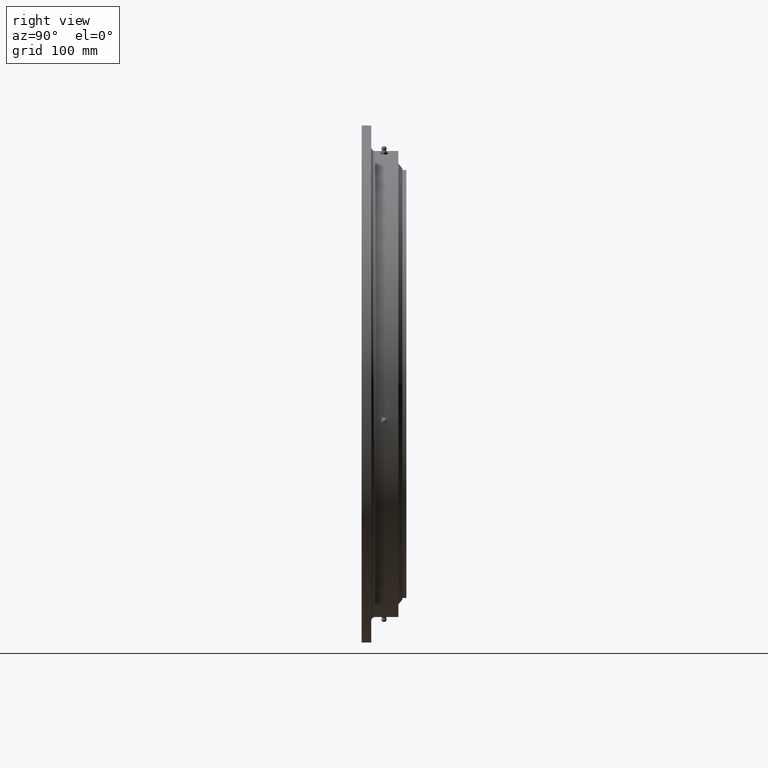
[diagram: clean part render]
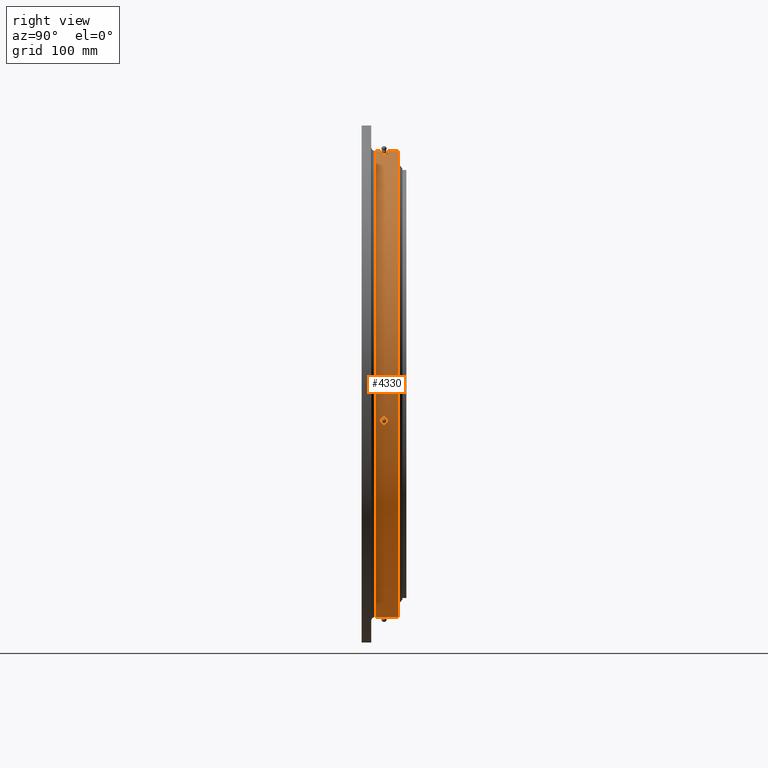
[diagram: same view with one face highlighted and labeled with its STEP entity id]
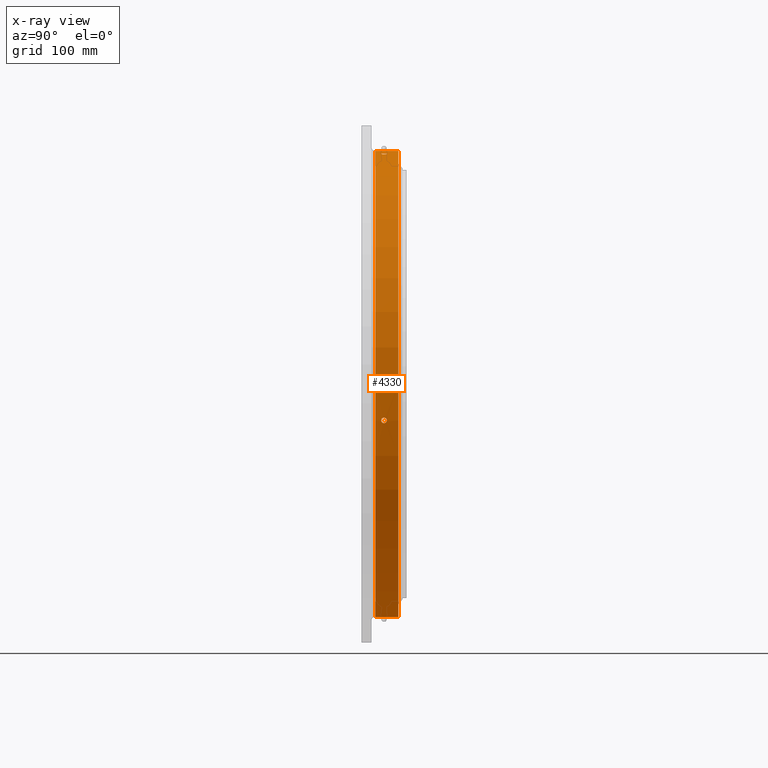
[diagram: x-ray of the same camera — body ghosted, the highlighted face saturated]
A machine part, right view. The second image highlights one B-rep face of the part: STEP entity #4330.
The next image is the same camera in x-ray: the body ghosted, the highlighted face saturated — about 0% of this face is hidden behind the body in this view.
In plain terms, the highlighted cylindrical surface (partial cylindrical patch) has radius 292 mm, axis along (-0, 1, -0).
Its self-contained STEP definition (entity closure, byte-faithful):
#81 = CARTESIAN_POINT ( 'NONE',  ( 0.0000000000000000000, -11.00000000000004100, 292.0000000000000600 ) ) ;
#155 = CARTESIAN_POINT ( 'NONE',  ( 47.20889630285432000, 3.146594439009602800, 288.1585764264917200 ) ) ;
#185 = CARTESIAN_POINT ( 'NONE',  ( 287.9145844954449000, 1.757442893269221700, -48.67451482056718200 ) ) ;
#216 = CARTESIAN_POINT ( 'NONE',  ( 42.32910779389688100, 0.9064384252070941700, 288.9156427654972400 ) ) ;
#371 = CARTESIAN_POINT ( 'NONE',  ( 287.8555204499065200, -0.9060113532386968600, -49.02245733847024000 ) ) ;
#377 = CARTESIAN_POINT ( 'NONE',  ( 49.02245733846921600, -0.9060113532386986400, 287.8555204499067500 ) ) ;
#385 = CARTESIAN_POINT ( 'NONE',  ( 288.8647623424703300, 1.751993078519696900, -42.67511524179590100 ) ) ;
#452 = CARTESIAN_POINT ( 'NONE',  ( 288.8058973910238500, -2.312149980111091200, -43.07180441916415200 ) ) ;
#529 = CARTESIAN_POINT ( 'NONE',  ( 288.1585764264917200, 3.146594439009601900, -47.20889630285533700 ) ) ;
#642 = CARTESIAN_POINT ( 'NONE',  ( 42.67750499806174200, -1.755855468495625800, 288.8644087329223600 ) ) ;
#698 = CARTESIAN_POINT ( 'NONE',  ( 288.1259771539941400, 3.039193912445266900, -47.40735643327344900 ) ) ;
#720 = LINE ( 'NONE', #4418, #6774 ) ;
#725 = AXIS2_PLACEMENT_3D ( 'NONE', #9353, #8044, #5722 ) ;
#747 = CARTESIAN_POINT ( 'NONE',  ( 288.8803841167072600, -1.551321302229553600, -42.56913659480046900 ) ) ;
#796 = CARTESIAN_POINT ( 'NONE',  ( 288.3332941684955700, -3.477719641629781800, -46.12984407576900000 ) ) ;
#826 = EDGE_LOOP ( 'NONE', ( #9773, #6828, #6948, #4240 ) ) ;
#875 = CARTESIAN_POINT ( 'NONE',  ( 42.92835065063567200, 2.135342081986753500, 288.8272374525790300 ) ) ;
#927 = CARTESIAN_POINT ( 'NONE',  ( 46.57094826509877100, 3.389071834379513400, 288.2623748934139500 ) ) ;
#951 = CARTESIAN_POINT ( 'NONE',  ( 287.9809381417305200, -2.313875641280007200, -48.28048622506153000 ) ) ;
#1016 = CARTESIAN_POINT ( 'NONE',  ( 42.92826606166235600, -2.134966986178043100, 288.8272494734863500 ) ) ;
#1055 = CARTESIAN_POINT ( 'NONE',  ( 288.9317975595369600, 4.460888646687803700E-009, -42.21867310817260900 ) ) ;
#1107 = CARTESIAN_POINT ( 'NONE',  ( 288.5798078251224900, 3.320200754326101000, -44.56163466459040000 ) ) ;
#1255 = CARTESIAN_POINT ( 'NONE',  ( 287.8405776340303000, -0.4586454577529530100, -49.11011957118917300 ) ) ;
#1384 = EDGE_CURVE ( 'NONE', #1803, #5769, #7996, .T. ) ;
#1529 = EDGE_CURVE ( 'NONE', #3399, #4341, #7927, .T. ) ;
#1558 = CARTESIAN_POINT ( 'NONE',  ( 287.8963376336964200, 1.553254704249977400, -48.78223473081985900 ) ) ;
#1587 = CARTESIAN_POINT ( 'NONE',  ( 42.21867310817159300, 4.460888646687803700E-009, 288.9317975595371300 ) ) ;
#1652 = CARTESIAN_POINT ( 'NONE',  ( 288.2269088295212800, 3.322147765666581000, -46.78989297759484600 ) ) ;
#1672 = CARTESIAN_POINT ( 'NONE',  ( 49.13249149233755000, 0.4624063129267878000, 287.8367563042555700 ) ) ;
#1699 = CARTESIAN_POINT ( 'NONE',  ( 45.90388083244634000, 3.500192912144351800, 288.3693585967969900 ) ) ;
#1754 = CARTESIAN_POINT ( 'NONE',  ( 288.1584883878371700, -3.146204069004259600, -47.20942625995739700 ) ) ;
#1755 = CARTESIAN_POINT ( 'NONE',  ( 48.42631280847368200, -2.133733730226406300, 287.9564348366741300 ) ) ;
#1803 = VERTEX_POINT ( 'NONE', #1055 ) ;
#1820 = CARTESIAN_POINT ( 'NONE',  ( 48.95610305292218100, -1.128304128777330300, 287.8668228431490100 ) ) ;
#1899 = CARTESIAN_POINT ( 'NONE',  ( 44.78200859129147200, -3.387953936008307700, 288.5457019048786800 ) ) ;
#1916 = CARTESIAN_POINT ( 'NONE',  ( 287.8367563042554600, -0.2312553657585158800, -49.13249149233858000 ) ) ;
#1987 = B_SPLINE_CURVE_WITH_KNOTS ( 'NONE', 3,
 ( #4311, #1916, #1255, #371, #8339, #2041, #9307, #2299, #951, #7990, #6668, #7420, #1754, #3342, #6563, #796, #5071, #3590, #5039, #8182, #2701, #2526, #8787, #5083, #2777, #452, #3531, #4282, #747, #3201, #5394, #2898, #4125, #8282 ),
 .UNSPECIFIED., .F., .F.,
 ( 4, 2, 2, 2, 2, 2, 2, 2, 2, 2, 2, 2, 2, 2, 2, 2, 4 ),
 ( 1.919444837870882000E-018, 0.0006839186438957310500, 0.001367837287791460200, 0.002051755931687188900, 0.002735674575582917300, 0.003419593219478645600, 0.004103511863374374400, 0.004787430507270102300, 0.005471349151165831100, 0.006155267795061559800, 0.006839186438957288600, 0.007523105082853018300, 0.008207023726748747000, 0.008890942370644475800, 0.009574861014540204600, 0.01025877965843593500, 0.01094269830233166200 ),
 .UNSPECIFIED. ) ;
#2025 = CARTESIAN_POINT ( 'NONE',  ( 47.41048720234763900, -3.037489477667033400, 288.1254627986847400 ) ) ;
#2041 = CARTESIAN_POINT ( 'NONE',  ( 287.8962326206456100, -1.552200086800851000, -48.78285521344943700 ) ) ;
#2299 = CARTESIAN_POINT ( 'NONE',  ( 287.9564348366739600, -2.133733730226409000, -48.42631280847468400 ) ) ;
#2366 = CARTESIAN_POINT ( 'NONE',  ( 3.575968653510272000E-014, 22.16364734299516900, -292.0000000000000600 ) ) ;
#2368 = CARTESIAN_POINT ( 'NONE',  ( 49.13249149233756400, 4.460889323045970300E-009, 287.8367563042555700 ) ) ;
#2423 = CARTESIAN_POINT ( 'NONE',  ( 48.78223473081882800, 1.553254704249979100, 287.8963376336964800 ) ) ;
#2458 = CARTESIAN_POINT ( 'NONE',  ( 45.22361897625437900, 3.477013091493038800, 288.4768176524664200 ) ) ;
#2526 = CARTESIAN_POINT ( 'NONE',  ( 288.6434479082269600, -3.146548344290857700, -44.14753531969959300 ) ) ;
#2617 = CARTESIAN_POINT ( 'NONE',  ( 42.24132389320103400, -0.4604158421186757600, 288.9284903857500200 ) ) ;
#2650 = CIRCLE ( 'NONE', #5917, 292.0000000000000600 ) ;
#2667 = CARTESIAN_POINT ( 'NONE',  ( 45.22556019124175500, -3.477323496806136800, 288.4765139255499100 ) ) ;
#2683 = CARTESIAN_POINT ( 'NONE',  ( 0.0000000000000000000, 17.99999999999999600, 292.0000000000000600 ) ) ;
#2701 = CARTESIAN_POINT ( 'NONE',  ( 288.5790741804376600, -3.321847795812679700, -44.56638688871843400 ) ) ;
#2706 = CARTESIAN_POINT ( 'NONE',  ( 288.4768176524662500, 3.477013091493037900, -45.22361897625538800 ) ) ;
#2714 = CARTESIAN_POINT ( 'NONE',  ( 288.9059004071688200, 1.127692049394917900, -42.39561659527777900 ) ) ;
#2737 = B_SPLINE_CURVE_WITH_KNOTS ( 'NONE', 3,
 ( #1587, #3164, #4770, #216, #8188, #8820, #8060, #875, #8412, #4303, #3411, #3987, #8486, #3221, #7741, #2458, #6992, #1699, #6233, #927, #5487, #155, #4721, #9226, #3949, #8452, #3198, #7705, #2423, #6960, #1672, #6196 ),
 .UNSPECIFIED., .F., .F.,
 ( 4, 2, 2, 2, 2, 2, 2, 2, 2, 2, 2, 2, 2, 2, 2, 4 ),
 ( 0.01094269830233166700, 0.01162646252176317000, 0.01231022674119467200, 0.01299399096062617300, 0.01367775518005767500, 0.01436151939948917600, 0.01504528361892067800, 0.01572904783835217900, 0.01641281205778367900, 0.01709657627721518000, 0.01778034049664668100, 0.01846410471607818100, 0.01914786893550968200, 0.01983163315494118600, 0.02051539737437268700, 0.02188292581323569900 ),
 .UNSPECIFIED. ) ;
#2777 = CARTESIAN_POINT ( 'NONE',  ( 288.7575076961283000, -2.638804554593000800, -43.39502797415573800 ) ) ;
#2820 = CARTESIAN_POINT ( 'NONE',  ( 48.78285521344842100, -1.552200086800851600, 287.8962326206456600 ) ) ;
#2878 = CARTESIAN_POINT ( 'NONE',  ( 45.90556347608059400, -3.499918853653414300, 288.3690887664408300 ) ) ;
#2898 = CARTESIAN_POINT ( 'NONE',  ( 288.9284903857499100, -0.4604158421186733100, -42.24132389320203600 ) ) ;
#2916 = EDGE_CURVE ( 'NONE', #4341, #3399, #2737, .T. ) ;
#3013 = CARTESIAN_POINT ( 'NONE',  ( 288.9317975595370700, 0.2283793447495573200, -42.21867310817260900 ) ) ;
#3025 = EDGE_CURVE ( 'NONE', #6337, #7615, #720, .T. ) ;
#3158 = CARTESIAN_POINT ( 'NONE',  ( 288.6440841308963700, 3.144457492696149300, -44.14337396032511400 ) ) ;
#3164 = CARTESIAN_POINT ( 'NONE',  ( 42.21867310817159300, 0.2283793447495557900, 288.9317975595371900 ) ) ;
#3198 = CARTESIAN_POINT ( 'NONE',  ( 48.42227673045984200, 2.139169787648932200, 287.9571139500480400 ) ) ;
#3201 = CARTESIAN_POINT ( 'NONE',  ( 288.9059465575870700, -1.127095867206578300, -42.39530353126158200 ) ) ;
#3221 = CARTESIAN_POINT ( 'NONE',  ( 44.56163466458937700, 3.320200754326097400, 288.5798078251226600 ) ) ;
#3323 = CIRCLE ( 'NONE', #5551, 292.0000000000000600 ) ;
#3342 = CARTESIAN_POINT ( 'NONE',  ( 288.2262906535071900, -3.320722075032903400, -46.79369331306973100 ) ) ;
#3381 = CARTESIAN_POINT ( 'NONE',  ( 288.7314169779352800, 2.782416065260173700, -43.56839531778133100 ) ) ;
#3399 = VERTEX_POINT ( 'NONE', #2368 ) ;
#3411 = CARTESIAN_POINT ( 'NONE',  ( 43.56839531778031500, 2.782416065260172800, 288.7314169779354500 ) ) ;
#3531 = CARTESIAN_POINT ( 'NONE',  ( 288.8272494734862300, -2.134966986178040000, -42.92826606166335800 ) ) ;
#3559 = FACE_OUTER_BOUND ( 'NONE', #826, .T. ) ;
#3571 = CARTESIAN_POINT ( 'NONE',  ( 49.11011957118815700, -0.4586454577529546800, 287.8405776340304100 ) ) ;
#3590 = CARTESIAN_POINT ( 'NONE',  ( 288.4405139680108600, -3.500080697633168600, -45.45461490227046400 ) ) ;
#3847 = CARTESIAN_POINT ( 'NONE',  ( 287.8367563042554000, 0.4624063129267875200, -49.13249149233854500 ) ) ;
#3949 = CARTESIAN_POINT ( 'NONE',  ( 47.96043214083786000, 2.638066420152105400, 288.0344130244017200 ) ) ;
#3987 = CARTESIAN_POINT ( 'NONE',  ( 43.94473188885889700, 3.036882258378010800, 288.6743784264012900 ) ) ;
#4007 = CARTESIAN_POINT ( 'NONE',  ( 49.13249149233755000, -0.2312553657585161300, 287.8367563042555200 ) ) ;
#4035 = CARTESIAN_POINT ( 'NONE',  ( 42.56913659479947400, -1.551321302229555800, 288.8803841167075500 ) ) ;
#4102 = CARTESIAN_POINT ( 'NONE',  ( 46.79369331306872900, -3.320722075032901600, 288.2262906535073100 ) ) ;
#4116 = CARTESIAN_POINT ( 'NONE',  ( 42.32984234703845800, -0.9088852506788056600, 288.9155351442937600 ) ) ;
#4125 = CARTESIAN_POINT ( 'NONE',  ( 288.9317975595370200, -0.2284309140710708000, -42.21867310817261700 ) ) ;
#4181 = CARTESIAN_POINT ( 'NONE',  ( 288.8805398184067600, 1.548906331347780400, -42.56807854245477100 ) ) ;
#4240 = ORIENTED_EDGE ( 'NONE', *, *, #3025, .F. ) ;
#4282 = CARTESIAN_POINT ( 'NONE',  ( 288.8644087329222400, -1.755855468495622000, -42.67750499806275100 ) ) ;
#4303 = CARTESIAN_POINT ( 'NONE',  ( 43.39054599747871100, 2.634578809146741000, 288.7581799932646000 ) ) ;
#4311 = CARTESIAN_POINT ( 'NONE',  ( 287.8367563042553500, 4.460888605588285200E-009, -49.13249149233856600 ) ) ;
#4330 = ADVANCED_FACE ( 'NONE', ( #5562, #9559, #3559 ), #5332, .T. ) ;
#4341 = VERTEX_POINT ( 'NONE', #6425 ) ;
#4418 = CARTESIAN_POINT ( 'NONE',  ( 0.0000000000000000000, 22.16364734299516900, 292.0000000000000600 ) ) ;
#4541 = CARTESIAN_POINT ( 'NONE',  ( 288.9317975595369600, 4.460888646687803700E-009, -42.21867310817260900 ) ) ;
#4721 = CARTESIAN_POINT ( 'NONE',  ( 47.40735643327242600, 3.039193912445266900, 288.1259771539942000 ) ) ;
#4770 = CARTESIAN_POINT ( 'NONE',  ( 42.24058070161000000, 0.4553544499836484900, 288.9285990400026100 ) ) ;
#4860 = DIRECTION ( 'NONE',  ( -0.0000000000000000000, 1.000000000000000000, 3.236020378625323200E-016 ) ) ;
#4994 = EDGE_CURVE ( 'NONE', #5769, #1803, #1987, .T. ) ;
#5016 = CARTESIAN_POINT ( 'NONE',  ( 44.56638688871741700, -3.321847795812681100, 288.5790741804378300 ) ) ;
#5039 = CARTESIAN_POINT ( 'NONE',  ( 288.4765139255498000, -3.477323496806136400, -45.22556019124277100 ) ) ;
#5040 = CARTESIAN_POINT ( 'NONE',  ( 0.0000000000000000000, -10.99999999999994700, 0.0000000000000000000 ) ) ;
#5071 = CARTESIAN_POINT ( 'NONE',  ( 288.3690887664407700, -3.499918853653413400, -45.90556347608161000 ) ) ;
#5083 = CARTESIAN_POINT ( 'NONE',  ( 288.7311972956701400, -2.783474925075506400, -43.56984828254447000 ) ) ;
#5088 = CARTESIAN_POINT ( 'NONE',  ( 44.14753531969859100, -3.146548344290859100, 288.6434479082271300 ) ) ;
#5113 = CARTESIAN_POINT ( 'NONE',  ( 288.0639914001445700, 2.785758414590748800, -47.78255972164796400 ) ) ;
#5137 = DIRECTION ( 'NONE',  ( -0.0000000000000000000, 1.000000000000000000, -0.0000000000000000000 ) ) ;
#5170 = DIRECTION ( 'NONE',  ( -0.0000000000000000000, 1.000000000000000000, -0.0000000000000000000 ) ) ;
#5220 = CARTESIAN_POINT ( 'NONE',  ( 42.39530353126056600, -1.127095867206581600, 288.9059465575872400 ) ) ;
#5249 = CARTESIAN_POINT ( 'NONE',  ( 46.57595763471503100, -3.387877048913864100, 288.2615673497254000 ) ) ;
#5257 = CARTESIAN_POINT ( 'NONE',  ( 288.3333637250733000, 3.477621221566339600, -46.12939805033536100 ) ) ;
#5332 = CYLINDRICAL_SURFACE ( 'NONE', #725, 292.0000000000000600 ) ;
#5394 = CARTESIAN_POINT ( 'NONE',  ( 288.9155351442936400, -0.9088852506788027700, -42.32984234703948800 ) ) ;
#5487 = CARTESIAN_POINT ( 'NONE',  ( 46.78989297759382300, 3.322147765666581900, 288.2269088295215100 ) ) ;
#5506 = CARTESIAN_POINT ( 'NONE',  ( 48.28048622506050700, -2.313875641280006300, 287.9809381417305200 ) ) ;
#5551 = AXIS2_PLACEMENT_3D ( 'NONE', #7616, #5137, #7124 ) ;
#5562 = FACE_BOUND ( 'NONE', #9744, .T. ) ;
#5722 = DIRECTION ( 'NONE',  ( 0.0000000000000000000, 0.0000000000000000000, 1.000000000000000000 ) ) ;
#5769 = VERTEX_POINT ( 'NONE', #8015 ) ;
#5818 = CARTESIAN_POINT ( 'NONE',  ( 288.8059206205894600, 2.311676006085805000, -43.07164043167701800 ) ) ;
#5841 = CARTESIAN_POINT ( 'NONE',  ( 3.575968653510272000E-014, -10.99999999999985400, -292.0000000000000600 ) ) ;
#5892 = VERTEX_POINT ( 'NONE', #5841 ) ;
#5917 = AXIS2_PLACEMENT_3D ( 'NONE', #5040, #4860, #9358 ) ;
#6012 = ORIENTED_EDGE ( 'NONE', *, *, #4994, .T. ) ;
#6032 = VERTEX_POINT ( 'NONE', #7514 ) ;
#6053 = CARTESIAN_POINT ( 'NONE',  ( 288.6743784264010600, 3.036882258378010000, -43.94473188885989900 ) ) ;
#6144 = CARTESIAN_POINT ( 'NONE',  ( 288.2623748934137200, 3.389071834379510800, -46.57094826509977300 ) ) ;
#6196 = CARTESIAN_POINT ( 'NONE',  ( 49.13249149233756400, 4.460889323045970300E-009, 287.8367563042555700 ) ) ;
#6233 = CARTESIAN_POINT ( 'NONE',  ( 46.12939805033434500, 3.477621221566340500, 288.3333637250734100 ) ) ;
#6283 = CARTESIAN_POINT ( 'NONE',  ( 48.67683199102301500, -1.753246945237971800, 287.9141923618729500 ) ) ;
#6337 = VERTEX_POINT ( 'NONE', #81 ) ;
#6395 = CARTESIAN_POINT ( 'NONE',  ( 46.12984407576799800, -3.477719641629781300, 288.3332941684959100 ) ) ;
#6424 = CARTESIAN_POINT ( 'NONE',  ( 43.56984828254345400, -2.783474925075509100, 288.7311972956702600 ) ) ;
#6425 = CARTESIAN_POINT ( 'NONE',  ( 42.21867310817159300, 4.460888646687803700E-009, 288.9317975595371300 ) ) ;
#6445 = CARTESIAN_POINT ( 'NONE',  ( 49.13249149233756400, 4.460889323045970300E-009, 287.8367563042555700 ) ) ;
#6496 = CARTESIAN_POINT ( 'NONE',  ( 287.9571139500479300, 2.139169787648933100, -48.42227673046085100 ) ) ;
#6563 = CARTESIAN_POINT ( 'NONE',  ( 288.2615673497252800, -3.387877048913865900, -46.57595763471604800 ) ) ;
#6571 = EDGE_CURVE ( 'NONE', #6337, #5892, #2650, .T. ) ;
#6623 = CARTESIAN_POINT ( 'NONE',  ( 47.78804198305173400, -2.781635595258668700, 288.0630827668590500 ) ) ;
#6668 = CARTESIAN_POINT ( 'NONE',  ( 288.0630827668590000, -2.781635595258672200, -47.78804198305274300 ) ) ;
#6692 = CARTESIAN_POINT ( 'NONE',  ( 288.7581799932643800, 2.634578809146739700, -43.39054599747969800 ) ) ;
#6715 = EDGE_CURVE ( 'NONE', #5892, #6032, #7728, .T. ) ;
#6772 = CARTESIAN_POINT ( 'NONE',  ( 287.9811282194813800, 2.315195384775908100, -48.27935300811491700 ) ) ;
#6774 = VECTOR ( 'NONE', #5170, 1000.000000000000000 ) ;
#6828 = ORIENTED_EDGE ( 'NONE', *, *, #6715, .T. ) ;
#6893 = DIRECTION ( 'NONE',  ( -0.0000000000000000000, 1.000000000000000000, -0.0000000000000000000 ) ) ;
#6948 = ORIENTED_EDGE ( 'NONE', *, *, #9796, .F. ) ;
#6960 = CARTESIAN_POINT ( 'NONE',  ( 49.04089687871533000, 0.9217528731356935400, 287.8524292519406900 ) ) ;
#6992 = CARTESIAN_POINT ( 'NONE',  ( 45.44803006926721900, 3.499804619458093400, 288.4415535525880600 ) ) ;
#7041 = CARTESIAN_POINT ( 'NONE',  ( 288.3693585967968700, 3.500192912144353100, -45.90388083244737800 ) ) ;
#7124 = DIRECTION ( 'NONE',  ( 0.0000000000000000000, 0.0000000000000000000, 1.000000000000000000 ) ) ;
#7139 = EDGE_LOOP ( 'NONE', ( #6012, #9184 ) ) ;
#7251 = CARTESIAN_POINT ( 'NONE',  ( 288.8272374525789100, 2.135342081986757000, -42.92835065063669500 ) ) ;
#7295 = ORIENTED_EDGE ( 'NONE', *, *, #2916, .T. ) ;
#7318 = CARTESIAN_POINT ( 'NONE',  ( 288.0344130244015400, 2.638066420152108000, -47.96043214083886900 ) ) ;
#7327 = CARTESIAN_POINT ( 'NONE',  ( 47.20942625995638800, -3.146204069004257900, 288.1584883878372800 ) ) ;
#7420 = CARTESIAN_POINT ( 'NONE',  ( 288.1254627986845100, -3.037489477667035100, -47.41048720234866200 ) ) ;
#7502 = VECTOR ( 'NONE', #6893, 1000.000000000000000 ) ;
#7514 = CARTESIAN_POINT ( 'NONE',  ( 3.575968653510272000E-014, 17.99999999999999600, -292.0000000000000600 ) ) ;
#7615 = VERTEX_POINT ( 'NONE', #2683 ) ;
#7616 = CARTESIAN_POINT ( 'NONE',  ( 0.0000000000000000000, 17.99999999999999600, 0.0000000000000000000 ) ) ;
#7705 = CARTESIAN_POINT ( 'NONE',  ( 48.67451482056614500, 1.757442893269220500, 287.9145844954449000 ) ) ;
#7728 = LINE ( 'NONE', #2366, #7502 ) ;
#7741 = CARTESIAN_POINT ( 'NONE',  ( 44.78158857840009000, 3.387788171854660300, 288.5457664922476500 ) ) ;
#7756 = CARTESIAN_POINT ( 'NONE',  ( 47.96189721697778200, -2.636754269531899700, 288.0341689773412700 ) ) ;
#7798 = CARTESIAN_POINT ( 'NONE',  ( 288.9156427654971800, 0.9064384252070957200, -42.32910779389787600 ) ) ;
#7927 = B_SPLINE_CURVE_WITH_KNOTS ( 'NONE', 3,
 ( #6445, #4007, #3571, #377, #1820, #2820, #6283, #1755, #5506, #7756, #6623, #2025, #7327, #4102, #5249, #6395, #2878, #8626, #2667, #1899, #5016, #5088, #8830, #6424, #8695, #9309, #1016, #642, #4035, #5220, #4116, #2617, #8952, #8534 ),
 .UNSPECIFIED., .F., .F.,
 ( 4, 2, 2, 2, 2, 2, 2, 2, 2, 2, 2, 2, 2, 2, 2, 2, 4 ),
 ( 2.205962760988346800E-018, 0.0006839186438957312700, 0.001367837287791460400, 0.002051755931687189400, 0.002735674575582918600, 0.003419593219478647800, 0.004103511863374377000, 0.004787430507270106600, 0.005471349151165835400, 0.006155267795061564200, 0.006839186438957293800, 0.007523105082853022600, 0.008207023726748750500, 0.008890942370644479300, 0.009574861014540209800, 0.01025877965843593900, 0.01094269830233166700 ),
 .UNSPECIFIED. ) ;
#7990 = CARTESIAN_POINT ( 'NONE',  ( 288.0341689773412100, -2.636754269531899700, -47.96189721697878400 ) ) ;
#7996 = B_SPLINE_CURVE_WITH_KNOTS ( 'NONE', 3,
 ( #4541, #3013, #8743, #7798, #2714, #4181, #385, #7251, #5818, #6692, #3381, #6053, #3158, #1107, #8567, #2706, #8109, #7041, #5257, #6144, #1652, #529, #698, #5113, #7318, #6772, #6496, #185, #1558, #9593, #3847, #8056 ),
 .UNSPECIFIED., .F., .F.,
 ( 4, 2, 2, 2, 2, 2, 2, 2, 2, 2, 2, 2, 2, 2, 2, 4 ),
 ( 0.01094269830233166200, 0.01162646252176316500, 0.01231022674119466700, 0.01299399096062616900, 0.01367775518005767000, 0.01436151939948917200, 0.01504528361892067500, 0.01572904783835217900, 0.01641281205778367900, 0.01709657627721518400, 0.01778034049664668400, 0.01846410471607818800, 0.01914786893550968900, 0.01983163315494119300, 0.02051539737437269400, 0.02188292581323568800 ),
 .UNSPECIFIED. ) ;
#8015 = CARTESIAN_POINT ( 'NONE',  ( 287.8367563042553500, 4.460888605588285200E-009, -49.13249149233856600 ) ) ;
#8044 = DIRECTION ( 'NONE',  ( -0.0000000000000000000, 1.000000000000000000, -0.0000000000000000000 ) ) ;
#8056 = CARTESIAN_POINT ( 'NONE',  ( 287.8367563042553500, 4.460888605588285200E-009, -49.13249149233856600 ) ) ;
#8060 = CARTESIAN_POINT ( 'NONE',  ( 42.67511524179487700, 1.751993078519693800, 288.8647623424703900 ) ) ;
#8109 = CARTESIAN_POINT ( 'NONE',  ( 288.4415535525877800, 3.499804619458092100, -45.44803006926821400 ) ) ;
#8182 = CARTESIAN_POINT ( 'NONE',  ( 288.5457019048783400, -3.387953936008306900, -44.78200859129246700 ) ) ;
#8188 = CARTESIAN_POINT ( 'NONE',  ( 42.39561659527676300, 1.127692049394920300, 288.9059004071689900 ) ) ;
#8282 = CARTESIAN_POINT ( 'NONE',  ( 288.9317975595369600, 4.460888646687803700E-009, -42.21867310817260900 ) ) ;
#8339 = CARTESIAN_POINT ( 'NONE',  ( 287.8668228431488400, -1.128304128777329000, -48.95610305292320400 ) ) ;
#8412 = CARTESIAN_POINT ( 'NONE',  ( 43.07164043167600900, 2.311676006085807300, 288.8059206205895700 ) ) ;
#8452 = CARTESIAN_POINT ( 'NONE',  ( 48.27935300811390100, 2.315195384775908600, 287.9811282194815500 ) ) ;
#8486 = CARTESIAN_POINT ( 'NONE',  ( 44.14337396032411200, 3.144457492696147900, 288.6440841308965400 ) ) ;
#8534 = CARTESIAN_POINT ( 'NONE',  ( 42.21867310817159300, 4.460888646687803700E-009, 288.9317975595371300 ) ) ;
#8567 = CARTESIAN_POINT ( 'NONE',  ( 288.5457664922475900, 3.387788171854662100, -44.78158857840110600 ) ) ;
#8626 = CARTESIAN_POINT ( 'NONE',  ( 45.45461490226944800, -3.500080697633166900, 288.4405139680110300 ) ) ;
#8695 = CARTESIAN_POINT ( 'NONE',  ( 43.39502797415472200, -2.638804554593003000, 288.7575076961284100 ) ) ;
#8743 = CARTESIAN_POINT ( 'NONE',  ( 288.9285990400025500, 0.4553544499836497100, -42.24058070161100200 ) ) ;
#8787 = CARTESIAN_POINT ( 'NONE',  ( 288.6743544880972100, -3.036909907119263800, -43.94488630131518600 ) ) ;
#8820 = CARTESIAN_POINT ( 'NONE',  ( 42.56807854245375500, 1.548906331347781800, 288.8805398184068700 ) ) ;
#8830 = CARTESIAN_POINT ( 'NONE',  ( 43.94488630131417000, -3.036909907119266000, 288.6743544880973200 ) ) ;
#8948 = ORIENTED_EDGE ( 'NONE', *, *, #1529, .T. ) ;
#8952 = CARTESIAN_POINT ( 'NONE',  ( 42.21867310817159300, -0.2284309140710727200, 288.9317975595373000 ) ) ;
#9184 = ORIENTED_EDGE ( 'NONE', *, *, #1384, .T. ) ;
#9226 = CARTESIAN_POINT ( 'NONE',  ( 47.78255972164696900, 2.785758414590749700, 288.0639914001446300 ) ) ;
#9307 = CARTESIAN_POINT ( 'NONE',  ( 287.9141923618728400, -1.753246945237974600, -48.67683199102402400 ) ) ;
#9309 = CARTESIAN_POINT ( 'NONE',  ( 43.07180441916314400, -2.312149980111092100, 288.8058973910240800 ) ) ;
#9353 = CARTESIAN_POINT ( 'NONE',  ( 0.0000000000000000000, 22.16364734299516900, 0.0000000000000000000 ) ) ;
#9358 = DIRECTION ( 'NONE',  ( 0.0000000000000000000, -3.208050263792725000E-016, 1.000000000000000000 ) ) ;
#9559 = FACE_BOUND ( 'NONE', #7139, .T. ) ;
#9593 = CARTESIAN_POINT ( 'NONE',  ( 287.8524292519405800, 0.9217528731356904300, -49.04089687871635300 ) ) ;
#9744 = EDGE_LOOP ( 'NONE', ( #8948, #7295 ) ) ;
#9773 = ORIENTED_EDGE ( 'NONE', *, *, #6571, .T. ) ;
#9796 = EDGE_CURVE ( 'NONE', #7615, #6032, #3323, .T. ) ;